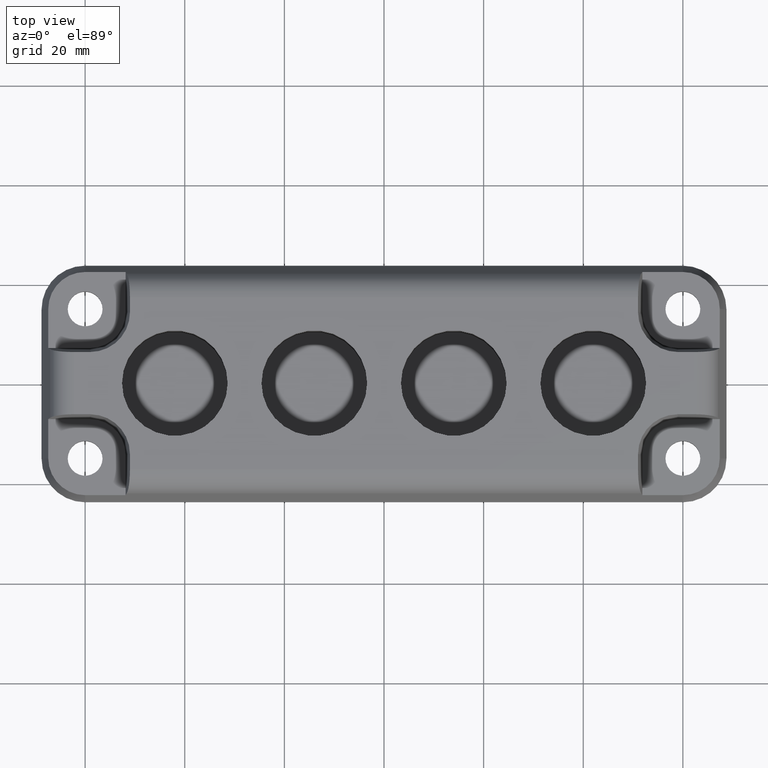
[diagram: clean part render]
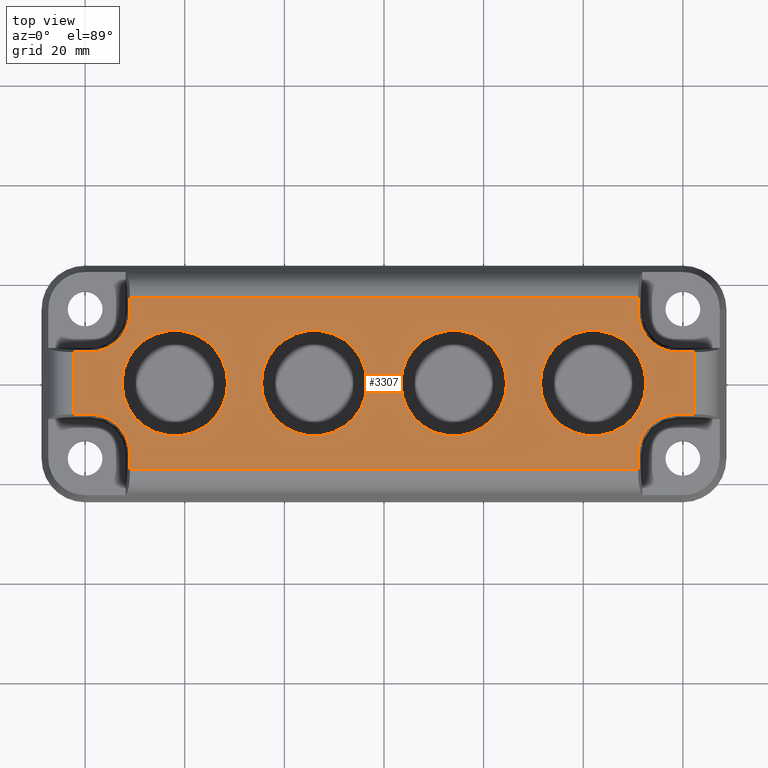
[diagram: same view with one face highlighted and labeled with its STEP entity id]
A machine part, top view. The second image highlights one B-rep face of the part: STEP entity #3307.
In plain terms, the highlighted planar face has unit normal (0, -0, -1).
Its self-contained STEP definition (entity closure, byte-faithful):
#4 = CIRCLE ( 'NONE', #2570, 8.000000000000007100 ) ;
#67 = EDGE_CURVE ( 'NONE', #1914, #2803, #3511, .T. ) ;
#75 = VERTEX_POINT ( 'NONE', #2273 ) ;
#103 = CIRCLE ( 'NONE', #233, 10.60000000000001000 ) ;
#113 = DIRECTION ( 'NONE',  ( 3.081487911019577400E-033, 3.118160315277577000E-032, 1.000000000000000000 ) ) ;
#117 = DIRECTION ( 'NONE',  ( 3.081487911019577400E-033, 3.118160315277577000E-032, 1.000000000000000000 ) ) ;
#131 = CARTESIAN_POINT ( 'NONE',  ( -59.00000000000009200, 6.249999999999977800, 10.00000000000000900 ) ) ;
#142 = DIRECTION ( 'NONE',  ( -1.000000000000000000, 0.0000000000000000000, 0.0000000000000000000 ) ) ;
#144 = DIRECTION ( 'NONE',  ( 3.081487911019577400E-033, 3.118160315277577000E-032, 1.000000000000000000 ) ) ;
#215 = ORIENTED_EDGE ( 'NONE', *, *, #972, .F. ) ;
#221 = ORIENTED_EDGE ( 'NONE', *, *, #2248, .F. ) ;
#233 = AXIS2_PLACEMENT_3D ( 'NONE', #1264, #1248, #2196 ) ;
#235 = LINE ( 'NONE', #2215, #2649 ) ;
#302 = DIRECTION ( 'NONE',  ( 7.304098846218156400E-016, -1.000000000000000000, -3.065683091291916000E-032 ) ) ;
#317 = ORIENTED_EDGE ( 'NONE', *, *, #748, .F. ) ;
#340 = DIRECTION ( 'NONE',  ( 0.0000000000000000000, 1.000000000000000000, 3.079641716389829500E-032 ) ) ;
#345 = VECTOR ( 'NONE', #2286, 1000.000000000000000 ) ;
#347 = EDGE_CURVE ( 'NONE', #3097, #4038, #3424, .T. ) ;
#395 = CARTESIAN_POINT ( 'NONE',  ( -62.23387313579402000, 6.249999999999977800, 10.00000000000000900 ) ) ;
#423 = DIRECTION ( 'NONE',  ( 1.000000000000000000, 5.337610695313284900E-016, 3.081487911019574600E-033 ) ) ;
#441 = CARTESIAN_POINT ( 'NONE',  ( 51.00000000000006400, 14.25000000000004100, 10.00000000000000900 ) ) ;
#471 = AXIS2_PLACEMENT_3D ( 'NONE', #1098, #1114, #3331 ) ;
#483 = ORIENTED_EDGE ( 'NONE', *, *, #3182, .F. ) ;
#499 = EDGE_CURVE ( 'NONE', #3790, #1914, #2311, .T. ) ;
#505 = VECTOR ( 'NONE', #302, 1000.000000000000000 ) ;
#530 = VERTEX_POINT ( 'NONE', #3887 ) ;
#581 = AXIS2_PLACEMENT_3D ( 'NONE', #762, #113, #142 ) ;
#589 = DIRECTION ( 'NONE',  ( 3.081487911019577400E-033, 3.118160315277577000E-032, 1.000000000000000000 ) ) ;
#594 = CIRCLE ( 'NONE', #2382, 10.60000000000000500 ) ;
#597 = EDGE_CURVE ( 'NONE', #75, #2377, #2051, .T. ) ;
#627 = ORIENTED_EDGE ( 'NONE', *, *, #1684, .T. ) ;
#628 = LINE ( 'NONE', #2808, #3019 ) ;
#644 = EDGE_CURVE ( 'NONE', #3646, #2176, #4062, .T. ) ;
#655 = CARTESIAN_POINT ( 'NONE',  ( -14.00000000000001800, 0.0000000000000000000, 10.00000000000000900 ) ) ;
#664 = EDGE_CURVE ( 'NONE', #1232, #1923, #3874, .T. ) ;
#687 = AXIS2_PLACEMENT_3D ( 'NONE', #2469, #2140, #3706 ) ;
#717 = DIRECTION ( 'NONE',  ( -1.000000000000000000, -0.0000000000000000000, -3.081487911019574600E-033 ) ) ;
#722 = DIRECTION ( 'NONE',  ( 1.000000000000000000, 0.0000000000000000000, 0.0000000000000000000 ) ) ;
#728 = VERTEX_POINT ( 'NONE', #3610 ) ;
#748 = EDGE_CURVE ( 'NONE', #3613, #2970, #594, .T. ) ;
#762 = CARTESIAN_POINT ( 'NONE',  ( -59.00000000000003600, -14.24999999999998600, 10.00000000000000900 ) ) ;
#791 = DIRECTION ( 'NONE',  ( 3.081487911019577400E-033, 3.118160315277577000E-032, 1.000000000000000000 ) ) ;
#800 = ORIENTED_EDGE ( 'NONE', *, *, #2864, .T. ) ;
#851 = CARTESIAN_POINT ( 'NONE',  ( -42.00000000000001400, 0.0000000000000000000, 10.00000000000000900 ) ) ;
#870 = PLANE ( 'NONE',  #687 ) ;
#882 = CARTESIAN_POINT ( 'NONE',  ( -42.00000000000001400, 0.0000000000000000000, 10.00000000000000900 ) ) ;
#930 = FACE_BOUND ( 'NONE', #2719, .T. ) ;
#972 = EDGE_CURVE ( 'NONE', #2176, #3646, #3077, .T. ) ;
#1013 = LINE ( 'NONE', #1339, #3362 ) ;
#1060 = CARTESIAN_POINT ( 'NONE',  ( 51.00000000000005700, 17.23387313579399900, 10.00000000000000900 ) ) ;
#1074 = CARTESIAN_POINT ( 'NONE',  ( 51.00000000000007100, -23.74999999999999300, 10.00000000000000900 ) ) ;
#1098 = CARTESIAN_POINT ( 'NONE',  ( 42.00000000000004300, 0.0000000000000000000, 10.00000000000000900 ) ) ;
#1099 = VERTEX_POINT ( 'NONE', #3564 ) ;
#1114 = DIRECTION ( 'NONE',  ( 3.081487911019577400E-033, 3.118160315277577000E-032, 1.000000000000000000 ) ) ;
#1116 = CIRCLE ( 'NONE', #1465, 10.60000000000000500 ) ;
#1128 = LINE ( 'NONE', #3442, #505 ) ;
#1144 = CARTESIAN_POINT ( 'NONE',  ( -14.00000000000001800, 0.0000000000000000000, 10.00000000000000900 ) ) ;
#1149 = CARTESIAN_POINT ( 'NONE',  ( -24.60000000000001900, 1.298125607096195200E-015, 10.00000000000000900 ) ) ;
#1156 = LINE ( 'NONE', #2089, #1647 ) ;
#1159 = CARTESIAN_POINT ( 'NONE',  ( 62.23387313579404200, 6.250000000000033800, 10.00000000000000900 ) ) ;
#1184 = DIRECTION ( 'NONE',  ( -1.460819769243627700E-015, 1.000000000000000000, 3.128761663969494200E-032 ) ) ;
#1208 = LINE ( 'NONE', #2661, #2739 ) ;
#1216 = CARTESIAN_POINT ( 'NONE',  ( -62.23387313579402000, 15.00000000000001400, 10.00000000000000900 ) ) ;
#1221 = DIRECTION ( 'NONE',  ( -0.0000000000000000000, -1.000000000000000000, -3.079641716389829500E-032 ) ) ;
#1232 = VERTEX_POINT ( 'NONE', #2415 ) ;
#1248 = DIRECTION ( 'NONE',  ( 3.081487911019577400E-033, 3.118160315277577000E-032, 1.000000000000000000 ) ) ;
#1264 = CARTESIAN_POINT ( 'NONE',  ( 14.00000000000000700, 0.0000000000000000000, 10.00000000000000900 ) ) ;
#1268 = AXIS2_PLACEMENT_3D ( 'NONE', #655, #3433, #3784 ) ;
#1271 = DIRECTION ( 'NONE',  ( 1.000000000000000000, 3.380486773698414600E-015, 3.081487911019574600E-033 ) ) ;
#1278 = CARTESIAN_POINT ( 'NONE',  ( 59.00000000000006400, 14.24999999999998600, 10.00000000000000900 ) ) ;
#1311 = CARTESIAN_POINT ( 'NONE',  ( 59.00000000000012100, -6.249999999999977800, 10.00000000000000900 ) ) ;
#1317 = ORIENTED_EDGE ( 'NONE', *, *, #347, .T. ) ;
#1334 = EDGE_CURVE ( 'NONE', #1819, #2587, #2542, .T. ) ;
#1339 = CARTESIAN_POINT ( 'NONE',  ( -60.00000000000005700, 17.23387313579399900, 10.00000000000000900 ) ) ;
#1465 = AXIS2_PLACEMENT_3D ( 'NONE', #882, #1813, #2771 ) ;
#1496 = DIRECTION ( 'NONE',  ( -1.000000000000000000, -4.448008912761071400E-016, -3.081487911019574600E-033 ) ) ;
#1514 = CARTESIAN_POINT ( 'NONE',  ( 51.00000000000006400, 15.00000000000017900, 10.00000000000000900 ) ) ;
#1564 = FACE_OUTER_BOUND ( 'NONE', #3060, .T. ) ;
#1572 = EDGE_CURVE ( 'NONE', #2063, #2578, #235, .T. ) ;
#1599 = DIRECTION ( 'NONE',  ( -1.000000000000000000, 0.0000000000000000000, 0.0000000000000000000 ) ) ;
#1647 = VECTOR ( 'NONE', #3638, 1000.000000000000000 ) ;
#1684 = EDGE_CURVE ( 'NONE', #3838, #2578, #1013, .T. ) ;
#1716 = AXIS2_PLACEMENT_3D ( 'NONE', #2283, #144, #3858 ) ;
#1718 = CARTESIAN_POINT ( 'NONE',  ( 59.00000000000011400, 6.249999999999977800, 10.00000000000000900 ) ) ;
#1758 = CIRCLE ( 'NONE', #3751, 8.000000000000007100 ) ;
#1772 = ORIENTED_EDGE ( 'NONE', *, *, #1972, .T. ) ;
#1813 = DIRECTION ( 'NONE',  ( 3.081487911019577400E-033, 3.118160315277577000E-032, 1.000000000000000000 ) ) ;
#1818 = CARTESIAN_POINT ( 'NONE',  ( 62.23387313579404200, 15.00000000000001400, 10.00000000000000900 ) ) ;
#1819 = VERTEX_POINT ( 'NONE', #3615 ) ;
#1838 = AXIS2_PLACEMENT_3D ( 'NONE', #1954, #2899, #722 ) ;
#1858 = ORIENTED_EDGE ( 'NONE', *, *, #664, .F. ) ;
#1914 = VERTEX_POINT ( 'NONE', #3030 ) ;
#1923 = VERTEX_POINT ( 'NONE', #1149 ) ;
#1929 = CARTESIAN_POINT ( 'NONE',  ( -59.00000000000003600, 14.24999999999998600, 10.00000000000000900 ) ) ;
#1954 = CARTESIAN_POINT ( 'NONE',  ( 42.00000000000004300, 0.0000000000000000000, 10.00000000000000900 ) ) ;
#1966 = ORIENTED_EDGE ( 'NONE', *, *, #499, .F. ) ;
#1971 = EDGE_CURVE ( 'NONE', #2970, #3613, #1116, .T. ) ;
#1972 = EDGE_CURVE ( 'NONE', #3850, #3838, #3868, .T. ) ;
#1978 = CARTESIAN_POINT ( 'NONE',  ( -52.60000000000001600, 1.298125607096195400E-015, 10.00000000000000900 ) ) ;
#2030 = ORIENTED_EDGE ( 'NONE', *, *, #3494, .F. ) ;
#2043 = CARTESIAN_POINT ( 'NONE',  ( -59.00000000000009200, -6.250000000000033800, 10.00000000000000900 ) ) ;
#2051 = CIRCLE ( 'NONE', #4055, 10.60000000000001000 ) ;
#2063 = VERTEX_POINT ( 'NONE', #2310 ) ;
#2087 = VECTOR ( 'NONE', #1184, 1000.000000000000000 ) ;
#2089 = CARTESIAN_POINT ( 'NONE',  ( -60.00000000000005000, 6.249999999999977800, 10.00000000000000900 ) ) ;
#2140 = DIRECTION ( 'NONE',  ( 3.081487911019574600E-033, -3.118160315277577000E-032, -1.000000000000000000 ) ) ;
#2162 = ORIENTED_EDGE ( 'NONE', *, *, #3160, .F. ) ;
#2176 = VERTEX_POINT ( 'NONE', #2350 ) ;
#2188 = VERTEX_POINT ( 'NONE', #1718 ) ;
#2193 = CIRCLE ( 'NONE', #581, 8.000000000000007100 ) ;
#2196 = DIRECTION ( 'NONE',  ( 1.000000000000000000, 0.0000000000000000000, 0.0000000000000000000 ) ) ;
#2215 = CARTESIAN_POINT ( 'NONE',  ( -51.00000000000004300, 23.75000000000005000, 10.00000000000000900 ) ) ;
#2217 = CARTESIAN_POINT ( 'NONE',  ( 51.00000000000006400, -17.23387313579394200, 10.00000000000000900 ) ) ;
#2239 = ORIENTED_EDGE ( 'NONE', *, *, #1971, .F. ) ;
#2248 = EDGE_CURVE ( 'NONE', #2188, #2587, #628, .T. ) ;
#2273 = CARTESIAN_POINT ( 'NONE',  ( 3.400000000000007000, 1.298125607096195200E-015, 10.00000000000000900 ) ) ;
#2283 = CARTESIAN_POINT ( 'NONE',  ( 59.00000000000006400, -14.24999999999998600, 10.00000000000000900 ) ) ;
#2286 = DIRECTION ( 'NONE',  ( 1.000000000000000000, -0.0000000000000000000, 3.081487911019574600E-033 ) ) ;
#2310 = CARTESIAN_POINT ( 'NONE',  ( -51.00000000000003600, 14.25000000000004100, 10.00000000000000900 ) ) ;
#2311 = CIRCLE ( 'NONE', #1716, 8.000000000000007100 ) ;
#2342 = ORIENTED_EDGE ( 'NONE', *, *, #3154, .T. ) ;
#2350 = CARTESIAN_POINT ( 'NONE',  ( 52.60000000000005100, 0.0000000000000000000, 10.00000000000000900 ) ) ;
#2377 = VERTEX_POINT ( 'NONE', #3201 ) ;
#2382 = AXIS2_PLACEMENT_3D ( 'NONE', #851, #589, #3687 ) ;
#2387 = VERTEX_POINT ( 'NONE', #131 ) ;
#2410 = CARTESIAN_POINT ( 'NONE',  ( -62.23387313579402000, -6.250000000000033800, 10.00000000000000900 ) ) ;
#2411 = FACE_BOUND ( 'NONE', #3833, .T. ) ;
#2415 = CARTESIAN_POINT ( 'NONE',  ( -3.400000000000008800, 0.0000000000000000000, 10.00000000000000900 ) ) ;
#2419 = EDGE_CURVE ( 'NONE', #530, #728, #2193, .T. ) ;
#2432 = EDGE_LOOP ( 'NONE', ( #2513, #2568 ) ) ;
#2469 = CARTESIAN_POINT ( 'NONE',  ( -60.00000000000005000, 15.00000000000001400, 10.00000000000000900 ) ) ;
#2513 = ORIENTED_EDGE ( 'NONE', *, *, #3440, .F. ) ;
#2536 = EDGE_CURVE ( 'NONE', #2387, #3097, #1156, .T. ) ;
#2542 = LINE ( 'NONE', #1818, #3025 ) ;
#2545 = CARTESIAN_POINT ( 'NONE',  ( -60.00000000000005000, -17.23387313579399900, 10.00000000000000900 ) ) ;
#2568 = ORIENTED_EDGE ( 'NONE', *, *, #597, .F. ) ;
#2570 = AXIS2_PLACEMENT_3D ( 'NONE', #1929, #3465, #2572 ) ;
#2572 = DIRECTION ( 'NONE',  ( 1.000000000000000000, 0.0000000000000000000, 0.0000000000000000000 ) ) ;
#2578 = VERTEX_POINT ( 'NONE', #3037 ) ;
#2587 = VERTEX_POINT ( 'NONE', #1159 ) ;
#2649 = VECTOR ( 'NONE', #340, 1000.000000000000000 ) ;
#2659 = LINE ( 'NONE', #2043, #3139 ) ;
#2661 = CARTESIAN_POINT ( 'NONE',  ( -60.00000000000003600, -6.250000000000033800, 10.00000000000000900 ) ) ;
#2681 = ORIENTED_EDGE ( 'NONE', *, *, #67, .F. ) ;
#2719 = EDGE_LOOP ( 'NONE', ( #2239, #317 ) ) ;
#2739 = VECTOR ( 'NONE', #423, 1000.000000000000000 ) ;
#2771 = DIRECTION ( 'NONE',  ( 1.000000000000000000, 0.0000000000000000000, 0.0000000000000000000 ) ) ;
#2803 = VERTEX_POINT ( 'NONE', #2217 ) ;
#2808 = CARTESIAN_POINT ( 'NONE',  ( 59.00000000000012100, 6.249999999999977800, 10.00000000000000900 ) ) ;
#2847 = EDGE_LOOP ( 'NONE', ( #1858, #2030 ) ) ;
#2864 = EDGE_CURVE ( 'NONE', #530, #1099, #1128, .T. ) ;
#2899 = DIRECTION ( 'NONE',  ( 3.081487911019577400E-033, 3.118160315277577000E-032, 1.000000000000000000 ) ) ;
#2920 = DIRECTION ( 'NONE',  ( 7.304098846218157300E-016, -1.000000000000000000, -3.065683091291916000E-032 ) ) ;
#2931 = DIRECTION ( 'NONE',  ( 1.000000000000000000, 0.0000000000000000000, 0.0000000000000000000 ) ) ;
#2957 = CARTESIAN_POINT ( 'NONE',  ( 14.00000000000000700, 0.0000000000000000000, 10.00000000000000900 ) ) ;
#2970 = VERTEX_POINT ( 'NONE', #3100 ) ;
#2995 = ORIENTED_EDGE ( 'NONE', *, *, #3933, .T. ) ;
#3010 = ORIENTED_EDGE ( 'NONE', *, *, #3386, .F. ) ;
#3019 = VECTOR ( 'NONE', #1271, 1000.000000000000000 ) ;
#3025 = VECTOR ( 'NONE', #3046, 1000.000000000000000 ) ;
#3030 = CARTESIAN_POINT ( 'NONE',  ( 51.00000000000007100, -14.25000000000004100, 10.00000000000000900 ) ) ;
#3037 = CARTESIAN_POINT ( 'NONE',  ( -51.00000000000004300, 17.23387313579399900, 10.00000000000000900 ) ) ;
#3046 = DIRECTION ( 'NONE',  ( -0.0000000000000000000, 1.000000000000000000, 3.079641716389829500E-032 ) ) ;
#3060 = EDGE_LOOP ( 'NONE', ( #2995, #3999, #221, #483, #1772, #627, #3713, #2162, #3546, #1317, #3010, #3212, #800, #2342, #2681, #1966 ) ) ;
#3077 = CIRCLE ( 'NONE', #1838, 10.60000000000000500 ) ;
#3097 = VERTEX_POINT ( 'NONE', #395 ) ;
#3100 = CARTESIAN_POINT ( 'NONE',  ( -31.40000000000001300, 0.0000000000000000000, 10.00000000000000900 ) ) ;
#3139 = VECTOR ( 'NONE', #1496, 1000.000000000000000 ) ;
#3143 = CIRCLE ( 'NONE', #1268, 10.60000000000000900 ) ;
#3154 = EDGE_CURVE ( 'NONE', #1099, #2803, #3680, .T. ) ;
#3160 = EDGE_CURVE ( 'NONE', #2387, #2063, #4, .T. ) ;
#3182 = EDGE_CURVE ( 'NONE', #3850, #2188, #1758, .T. ) ;
#3201 = CARTESIAN_POINT ( 'NONE',  ( 24.60000000000001900, 0.0000000000000000000, 10.00000000000000900 ) ) ;
#3212 = ORIENTED_EDGE ( 'NONE', *, *, #2419, .F. ) ;
#3234 = FACE_BOUND ( 'NONE', #2432, .T. ) ;
#3240 = ORIENTED_EDGE ( 'NONE', *, *, #644, .F. ) ;
#3307 = ADVANCED_FACE ( 'NONE', ( #3234, #930, #2411, #3779, #1564 ), #870, .F. ) ;
#3331 = DIRECTION ( 'NONE',  ( 1.000000000000000000, 0.0000000000000000000, 0.0000000000000000000 ) ) ;
#3362 = VECTOR ( 'NONE', #717, 1000.000000000000000 ) ;
#3386 = EDGE_CURVE ( 'NONE', #728, #4038, #2659, .T. ) ;
#3396 = CARTESIAN_POINT ( 'NONE',  ( 31.40000000000004500, 1.298125607096195400E-015, 10.00000000000000900 ) ) ;
#3410 = VECTOR ( 'NONE', #2920, 1000.000000000000000 ) ;
#3424 = LINE ( 'NONE', #1216, #3730 ) ;
#3433 = DIRECTION ( 'NONE',  ( 3.081487911019577400E-033, 3.118160315277577000E-032, 1.000000000000000000 ) ) ;
#3440 = EDGE_CURVE ( 'NONE', #2377, #75, #103, .T. ) ;
#3442 = CARTESIAN_POINT ( 'NONE',  ( -51.00000000000005700, 15.00000000000001400, 10.00000000000000900 ) ) ;
#3465 = DIRECTION ( 'NONE',  ( 3.081487911019577400E-033, 3.118160315277577000E-032, 1.000000000000000000 ) ) ;
#3479 = DIRECTION ( 'NONE',  ( 3.081487911019577400E-033, 3.118160315277577000E-032, 1.000000000000000000 ) ) ;
#3494 = EDGE_CURVE ( 'NONE', #1923, #1232, #3143, .T. ) ;
#3511 = LINE ( 'NONE', #1074, #3410 ) ;
#3546 = ORIENTED_EDGE ( 'NONE', *, *, #2536, .T. ) ;
#3564 = CARTESIAN_POINT ( 'NONE',  ( -51.00000000000003600, -17.23387313579399900, 10.00000000000000900 ) ) ;
#3610 = CARTESIAN_POINT ( 'NONE',  ( -59.00000000000008500, -6.250000000000033800, 10.00000000000000900 ) ) ;
#3613 = VERTEX_POINT ( 'NONE', #1978 ) ;
#3615 = CARTESIAN_POINT ( 'NONE',  ( 62.23387313579404200, -6.249999999999977800, 10.00000000000000900 ) ) ;
#3638 = DIRECTION ( 'NONE',  ( -1.000000000000000000, -8.896017825522147300E-017, -3.081487911019574600E-033 ) ) ;
#3646 = VERTEX_POINT ( 'NONE', #3396 ) ;
#3680 = LINE ( 'NONE', #2545, #345 ) ;
#3687 = DIRECTION ( 'NONE',  ( 1.000000000000000000, 0.0000000000000000000, 0.0000000000000000000 ) ) ;
#3706 = DIRECTION ( 'NONE',  ( -1.000000000000000000, 0.0000000000000000000, -3.081487911019574600E-033 ) ) ;
#3713 = ORIENTED_EDGE ( 'NONE', *, *, #1572, .F. ) ;
#3730 = VECTOR ( 'NONE', #1221, 1000.000000000000000 ) ;
#3751 = AXIS2_PLACEMENT_3D ( 'NONE', #1278, #3479, #1599 ) ;
#3779 = FACE_BOUND ( 'NONE', #2847, .T. ) ;
#3784 = DIRECTION ( 'NONE',  ( 1.000000000000000000, 0.0000000000000000000, 0.0000000000000000000 ) ) ;
#3790 = VERTEX_POINT ( 'NONE', #1311 ) ;
#3833 = EDGE_LOOP ( 'NONE', ( #215, #3240 ) ) ;
#3838 = VERTEX_POINT ( 'NONE', #1060 ) ;
#3850 = VERTEX_POINT ( 'NONE', #441 ) ;
#3858 = DIRECTION ( 'NONE',  ( 1.000000000000000000, 0.0000000000000000000, 0.0000000000000000000 ) ) ;
#3868 = LINE ( 'NONE', #1514, #2087 ) ;
#3874 = CIRCLE ( 'NONE', #3980, 10.60000000000000900 ) ;
#3887 = CARTESIAN_POINT ( 'NONE',  ( -51.00000000000003600, -14.25000000000004100, 10.00000000000000900 ) ) ;
#3920 = DIRECTION ( 'NONE',  ( 1.000000000000000000, 0.0000000000000000000, 0.0000000000000000000 ) ) ;
#3933 = EDGE_CURVE ( 'NONE', #3790, #1819, #1208, .T. ) ;
#3980 = AXIS2_PLACEMENT_3D ( 'NONE', #1144, #791, #3920 ) ;
#3999 = ORIENTED_EDGE ( 'NONE', *, *, #1334, .T. ) ;
#4038 = VERTEX_POINT ( 'NONE', #2410 ) ;
#4055 = AXIS2_PLACEMENT_3D ( 'NONE', #2957, #117, #2931 ) ;
#4062 = CIRCLE ( 'NONE', #471, 10.60000000000000500 ) ;